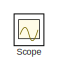
[diagram: root canvas - part 1/2, top left region]
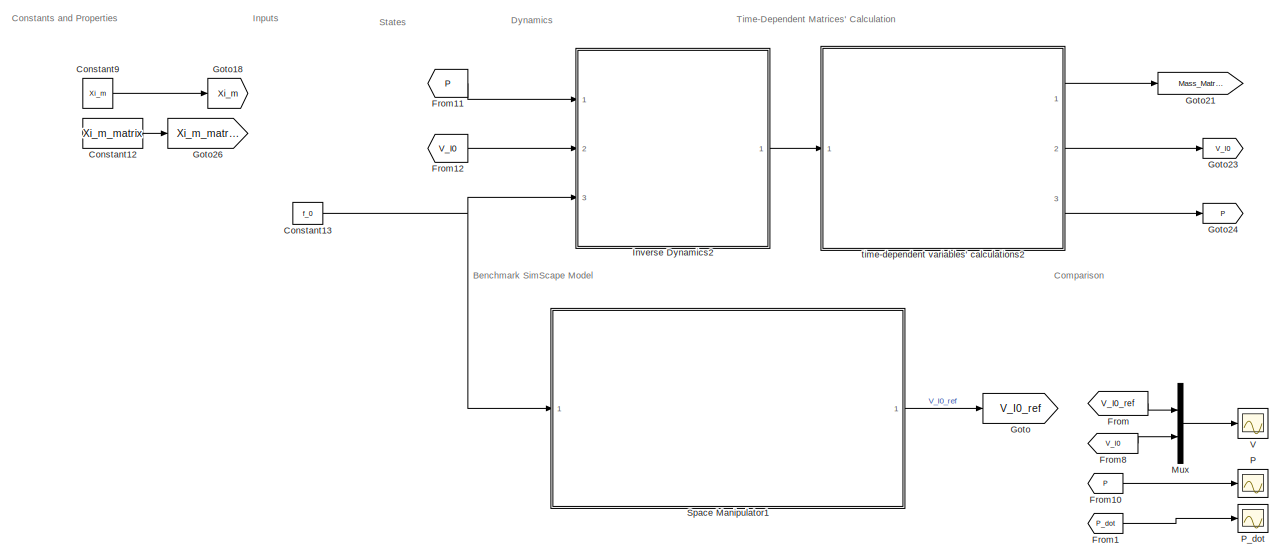
[diagram: root canvas - part 2/2, full width, bottom band]
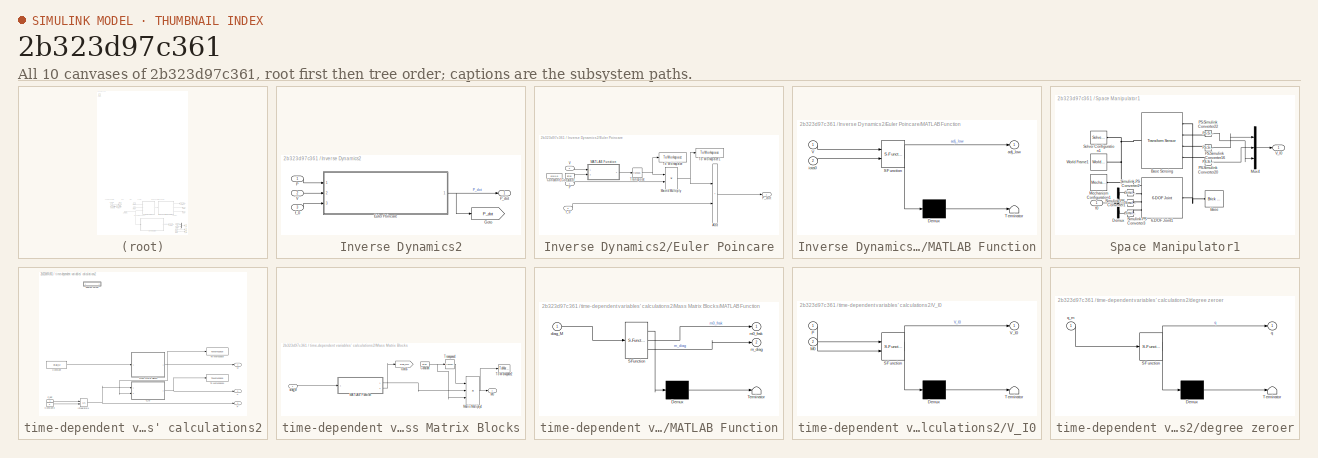
[diagram: thumbnail index - all 10 canvases of the model, root first then tree order]
MODEL slx_2b323d97c361
KIND model
CONFIG AbsTol = auto
CONFIG EnableMultiTasking = off
CONFIG FixedStep = auto
CONFIG InitFcn = % ************** Initiate forces\n% f0=[0;0;0;0;0;0];\n% f0=[0;0;0;0;0;0;0];\nf_0=[0;0;0];\nf_m=[0;0];\nf_e=[0;0;0;0;0;0];\n% ************** Initiate states\nq_m=[0;0];\nq_dot_m=[0;0];\nP=[0;0;0];\nV_I0=[1;2;0];\n% ************** Load main\n%run(Main.m)\nP=[100;   200;     0];
CONFIG MaxStep = auto
CONFIG MinStep = auto
CONFIG RelTol = 1e-3
CONFIG SampleTimeConstraint = Unconstrained
CONFIG SolverName = VariableStepAuto
CONFIG StartTime = 0.0
CONFIG StopTime = 0.01
BLOCK [Constant] Constant12
  Value = Xi_m_matrix
  VectorParams1D = off
BLOCK [Constant] Constant13
  Value = f_0
  VectorParams1D = off
BLOCK [Constant] Constant9
  Value = Xi_m
  VectorParams1D = off
BLOCK [From] From
  GotoTag = V_I0_ref
BLOCK [From] From1
  GotoTag = P_dot
  TagVisibility = global
BLOCK [From] From10
  GotoTag = P
  TagVisibility = global
BLOCK [From] From11
  GotoTag = P
  TagVisibility = global
BLOCK [From] From12
  GotoTag = V_I0
  TagVisibility = global
BLOCK [From] From8
  GotoTag = V_I0
  TagVisibility = global
BLOCK [Goto] Goto
  GotoTag = V_I0_ref
BLOCK [Goto] Goto18
  GotoTag = Xi_m
  TagVisibility = global
BLOCK [Goto] Goto21
  GotoTag = Mass_Matrix
  TagVisibility = global
BLOCK [Goto] Goto23
  GotoTag = V_I0
  TagVisibility = global
BLOCK [Goto] Goto24
  GotoTag = P
  TagVisibility = global
BLOCK [Goto] Goto26
  GotoTag = Xi_m_matrix
  TagVisibility = global
BLOCK [SubSystem] Inverse Dynamics2
  NameLocation = right
  Ports = [3, 1]
  RequestExecContextInheritance = off
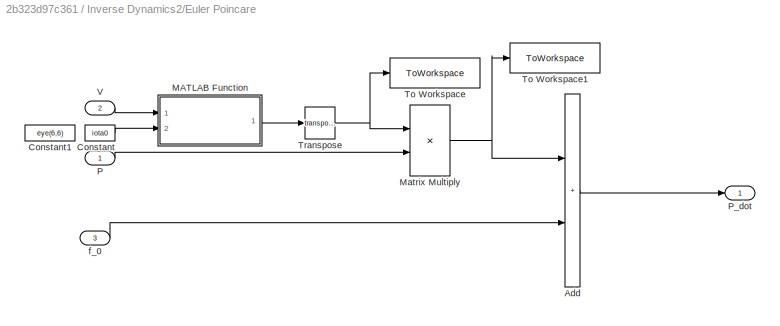
BLOCK [SubSystem] Inverse Dynamics2/Euler Poincare
  Ports = [3, 1]
  RequestExecContextInheritance = off
BLOCK [Sum] Inverse Dynamics2/Euler Poincare/Add
  IconShape = rectangular
  Ports = [2, 1]
BLOCK [Constant] Inverse Dynamics2/Euler Poincare/Constant
  Value = iota0
BLOCK [Constant] Inverse Dynamics2/Euler Poincare/Constant1
  Commented = on
  Value = eye(6,6)
BLOCK [SubSystem] Inverse Dynamics2/Euler Poincare/MATLAB Function
  ErrorFcn = Stateflow.Translate.translate
  PermitHierarchicalResolution = ExplicitOnly
  Ports = [2, 1]
  RequestExecContextInheritance = off
  SFBlockType = MATLAB Function
  TreatAsAtomicUnit = on
BLOCK [Demux] Inverse Dynamics2/Euler Poincare/MATLAB Function/ Demux 
  Outputs = 1
  Ports = [1, 1]
BLOCK [S-Function] Inverse Dynamics2/Euler Poincare/MATLAB Function/ SFunction 
  EnableBusSupport = on
  FunctionName = sf_sfun
  PortCounts = [2 2]
  Ports = [2, 2]
  SFcnIsStateOwnerBlock = off
  SFunctionDeploymentMode = off
  Tag = Stateflow S-Function 27
BLOCK [Terminator] Inverse Dynamics2/Euler Poincare/MATLAB Function/ Terminator 
BLOCK [Inport] Inverse Dynamics2/Euler Poincare/MATLAB Function/V
BLOCK [Outport] Inverse Dynamics2/Euler Poincare/MATLAB Function/adj_low
BLOCK [Inport] Inverse Dynamics2/Euler Poincare/MATLAB Function/iota0
  Port = 2
BLOCK [Product] Inverse Dynamics2/Euler Poincare/Matrix Multiply
  Multiplication = Matrix(*)
  Ports = [2, 1]
BLOCK [Inport] Inverse Dynamics2/Euler Poincare/P
BLOCK [Outport] Inverse Dynamics2/Euler Poincare/P_dot
BLOCK [ToWorkspace] Inverse Dynamics2/Euler Poincare/To Workspace
  FixptAsFi = on
  MaxDataPoints = inf
  Ports = [1]
  SampleTime = -1
  SaveFormat = Timeseries
  VariableName = simout
BLOCK [ToWorkspace] Inverse Dynamics2/Euler Poincare/To Workspace1
  FixptAsFi = on
  MaxDataPoints = inf
  Ports = [1]
  SampleTime = -1
  SaveFormat = Timeseries
  VariableName = simout1
BLOCK [Math] Inverse Dynamics2/Euler Poincare/Transpose
  Operator = transpose
  Ports = [1, 1]
BLOCK [Inport] Inverse Dynamics2/Euler Poincare/V
  Port = 2
BLOCK [Inport] Inverse Dynamics2/Euler Poincare/f_0
  Port = 3
BLOCK [Goto] Inverse Dynamics2/Goto
  GotoTag = P_dot
  TagVisibility = global
BLOCK [Inport] Inverse Dynamics2/P
BLOCK [Outport] Inverse Dynamics2/P_dot
BLOCK [Inport] Inverse Dynamics2/V
  Port = 2
BLOCK [Inport] Inverse Dynamics2/f_0
  Port = 3
BLOCK [Mux] Mux
  DisplayOption = bar
  Inputs = 2
  Ports = [2, 1]
BLOCK [Scope] P
  Floating = off
  NumInputPorts = 1
  Ports = [1]
  ScopeSpecificationString = Simulink.scopes.TimeScopeBlockCfg('CurrentConfiguration', extmgr.ConfigurationSet(extmgr.Configuration('Core','General UI',true),extmgr.Configuration('Core','Source UI',true),extmgr.Configuration('Sources','WiredSimulink',true,'DataLoggingVariableName','ScopeData1'),extmgr.Configuration('Visuals','Time Domain',true,'SerializedDisplays',{struct('MinYLimReal','-26.00000','MaxYLimReal','234.00000','Y...<+1801ch>
BLOCK [Scope] P_dot
  Floating = off
  NumInputPorts = 1
  Ports = [1]
  ScopeSpecificationString = Simulink.scopes.TimeScopeBlockCfg('CurrentConfiguration', extmgr.ConfigurationSet(extmgr.Configuration('Core','General UI',true),extmgr.Configuration('Core','Source UI',true),extmgr.Configuration('Sources','WiredSimulink',true,'DataLoggingVariableName','ScopeData3'),extmgr.Configuration('Visuals','Time Domain',true,'SerializedDisplays',{struct('MinYLimReal','-16.875','MaxYLimReal','1.875','YLabelR...<+1652ch>
BLOCK [Scope] Scope
  Floating = off
  IOType = viewer
  NumInputPorts = 1
  Ports = []
  ScopeSpecificationString = Simulink.scopes.TimeScopeBlockCfg('CurrentConfiguration', extmgr.ConfigurationSet(extmgr.Configuration('Core','General UI',true),extmgr.Configuration('Core','Source UI',true),extmgr.Configuration('Sources','WiredSimulink',true),extmgr.Configuration('Visuals','Time Domain',true,'SerializedDisplays',{struct('MinYLimReal','-10','MaxYLimReal','10','YLabelReal','','MinYLimMag','0','MaxYLimMag','10','Le...<+777ch>
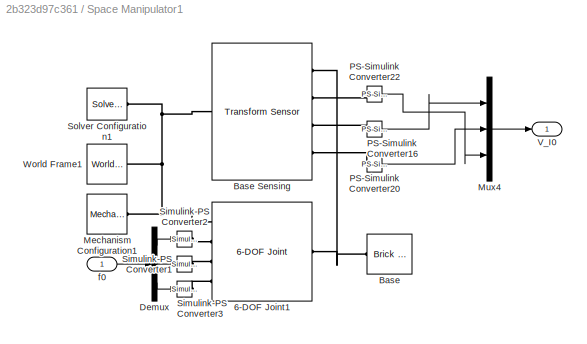
BLOCK [SubSystem] Space Manipulator1
  Ports = [1, 1]
  RequestExecContextInheritance = off
BLOCK [Reference] Space Manipulator1/6-DOF Joint1  REF=sm_lib/Joints/6-DOF Joint
  Ports = [0, 0, 0, 0, 0, 4, 1]
  SourceBlock = sm_lib/Joints/6-DOF Joint
  SourceProductBaseCode = MS
  SourceType = 6-DOF Joint
BLOCK [Reference] Space Manipulator1/Base  REF=sm_lib/Body Elements/Brick Solid
  Ports = [0, 0, 0, 0, 0, 0, 1]
  SourceBlock = sm_lib/Body Elements/Brick Solid
  SourceProductBaseCode = MS
  SourceType = Brick Solid
BLOCK [Reference] Space Manipulator1/Base Sensing  REF=sm_lib/Frames and
Transforms/Transform
Sensor
  Ports = [0, 0, 0, 0, 0, 1, 4]
  SourceBlock = sm_lib/Frames and\nTransforms/Transform\nSensor
  SourceProductBaseCode = MS
  SourceType = Transform\nSensor
BLOCK [Demux] Space Manipulator1/Demux
  Outputs = 3
  Ports = [1, 3]
BLOCK [Reference] Space Manipulator1/Mechanism Configuration1  REF=sm_lib/Utilities/Mechanism
Configuration
  Ports = [0, 0, 0, 0, 0, 0, 1]
  SourceBlock = sm_lib/Utilities/Mechanism\nConfiguration
  SourceProductBaseCode = MS
  SourceType = Mechanism\nConfiguration
BLOCK [Mux] Space Manipulator1/Mux4
  DisplayOption = bar
  Inputs = 3
  Ports = [3, 1]
BLOCK [Reference] Space Manipulator1/PS-Simulink Converter16  REF=nesl_utility/PS-Simulink
Converter
  Ports = [0, 1, 0, 0, 0, 1]
  SourceBlock = nesl_utility/PS-Simulink\nConverter
  SourceProductBaseCode = PW,SS
  SourceType = PS-Simulink\nConverter
BLOCK [Reference] Space Manipulator1/PS-Simulink Converter20  REF=nesl_utility/PS-Simulink
Converter
  Ports = [0, 1, 0, 0, 0, 1]
  SourceBlock = nesl_utility/PS-Simulink\nConverter
  SourceProductBaseCode = PW,SS
  SourceType = PS-Simulink\nConverter
BLOCK [Reference] Space Manipulator1/PS-Simulink Converter22  REF=nesl_utility/PS-Simulink
Converter
  Ports = [0, 1, 0, 0, 0, 1]
  SourceBlock = nesl_utility/PS-Simulink\nConverter
  SourceProductBaseCode = PW,SS
  SourceType = PS-Simulink\nConverter
BLOCK [Reference] Space Manipulator1/Simulink-PS Converter1  REF=nesl_utility/Simulink-PS
Converter
  Ports = [1, 0, 0, 0, 0, 0, 1]
  SourceBlock = nesl_utility/Simulink-PS\nConverter
  SourceProductBaseCode = PW,SS
  SourceType = Simulink-PS\nConverter
BLOCK [Reference] Space Manipulator1/Simulink-PS Converter2  REF=nesl_utility/Simulink-PS
Converter
  Ports = [1, 0, 0, 0, 0, 0, 1]
  SourceBlock = nesl_utility/Simulink-PS\nConverter
  SourceProductBaseCode = PW,SS
  SourceType = Simulink-PS\nConverter
BLOCK [Reference] Space Manipulator1/Simulink-PS Converter3  REF=nesl_utility/Simulink-PS
Converter
  Ports = [1, 0, 0, 0, 0, 0, 1]
  SourceBlock = nesl_utility/Simulink-PS\nConverter
  SourceProductBaseCode = PW,SS
  SourceType = Simulink-PS\nConverter
BLOCK [Reference] Space Manipulator1/Solver Configuration1  REF=nesl_utility/Solver
Configuration
  Ports = [0, 0, 0, 0, 0, 0, 1]
  SourceBlock = nesl_utility/Solver\nConfiguration
  SourceProductBaseCode = PW,SS
  SourceType = Solver\nConfiguration
BLOCK [Outport] Space Manipulator1/V_I0
BLOCK [Reference] Space Manipulator1/World Frame1  REF=sm_lib/Frames and
Transforms/World Frame
  Ports = [0, 0, 0, 0, 0, 0, 1]
  SourceBlock = sm_lib/Frames and\nTransforms/World Frame
  SourceProductBaseCode = MS
  SourceType = World Frame
BLOCK [Inport] Space Manipulator1/f0
BLOCK [Scope] V
  Floating = off
  NumInputPorts = 1
  Ports = [1]
  ScopeSpecificationString = Simulink.scopes.TimeScopeBlockCfg('CurrentConfiguration', extmgr.ConfigurationSet(extmgr.Configuration('Core','General UI',true),extmgr.Configuration('Core','Source UI',true),extmgr.Configuration('Sources','WiredSimulink',true,'DataLoggingVariableName','ScopeData2'),extmgr.Configuration('Visuals','Time Domain',true,'SerializedDisplays',{struct('MinYLimReal','-0.25','MaxYLimReal','2.25','YLabelReal...<+1680ch>
BLOCK [SubSystem] time-dependent variables' calculations2
  Ports = [1, 3]
  RequestExecContextInheritance = off
BLOCK [Constant] time-dependent variables' calculations2/Constant
  Value = diag_M
  VectorParams1D = off
BLOCK [Constant] time-dependent variables' calculations2/Constant3
  Value = P
  VectorParams1D = off
BLOCK [Integrator] time-dependent variables' calculations2/Integrator4
  InitialConditionSource = external
  Ports = [2, 1]
BLOCK [Outport] time-dependent variables' calculations2/M
BLOCK [SubSystem] time-dependent variables' calculations2/Mass Matrix Blocks
  Ports = [1, 1]
  RequestExecContextInheritance = off
BLOCK [Constant] time-dependent variables' calculations2/Mass Matrix Blocks/Constant
  Value = iota0
BLOCK [Goto] time-dependent variables' calculations2/Mass Matrix Blocks/Goto5
  GotoTag = diag_Mm
  TagVisibility = global
BLOCK [Outport] time-dependent variables' calculations2/Mass Matrix Blocks/M0
BLOCK [SubSystem] time-dependent variables' calculations2/Mass Matrix Blocks/MATLAB Function
  ErrorFcn = Stateflow.Translate.translate
  PermitHierarchicalResolution = ExplicitOnly
  Ports = [1, 2]
  RequestExecContextInheritance = off
  SFBlockType = MATLAB Function
  TreatAsAtomicUnit = on
BLOCK [Demux] time-dependent variables' calculations2/Mass Matrix Blocks/MATLAB Function/ Demux 
  Outputs = 1
  Ports = [1, 1]
BLOCK [S-Function] time-dependent variables' calculations2/Mass Matrix Blocks/MATLAB Function/ SFunction 
  EnableBusSupport = on
  FunctionName = sf_sfun
  PortCounts = [1 3]
  Ports = [1, 3]
  SFcnIsStateOwnerBlock = off
  SFunctionDeploymentMode = off
  Tag = Stateflow S-Function 63
BLOCK [Terminator] time-dependent variables' calculations2/Mass Matrix Blocks/MATLAB Function/ Terminator 
BLOCK [Inport] time-dependent variables' calculations2/Mass Matrix Blocks/MATLAB Function/diag_M
BLOCK [Outport] time-dependent variables' calculations2/Mass Matrix Blocks/MATLAB Function/m0_frak
BLOCK [Outport] time-dependent variables' calculations2/Mass Matrix Blocks/MATLAB Function/m_diag
  Port = 2
BLOCK [Product] time-dependent variables' calculations2/Mass Matrix Blocks/Matrix Multiply4
  Inputs = 3
  Multiplication = Matrix(*)
  Ports = [3, 1]
BLOCK [ToWorkspace] time-dependent variables' calculations2/Mass Matrix Blocks/To Workspace2
  FixptAsFi = on
  MaxDataPoints = inf
  Ports = [1]
  SampleTime = -1
  SaveFormat = Timeseries
  VariableName = m0calc
BLOCK [Math] time-dependent variables' calculations2/Mass Matrix Blocks/Transpose4
  Operator = transpose
  Ports = [1, 1]
BLOCK [Inport] time-dependent variables' calculations2/Mass Matrix Blocks/diag_M
BLOCK [Outport] time-dependent variables' calculations2/P
  Port = 3
BLOCK [Inport] time-dependent variables' calculations2/P_dot
BLOCK [ToWorkspace] time-dependent variables' calculations2/To Workspace
  FixptAsFi = on
  MaxDataPoints = inf
  Ports = [1]
  SampleTime = -1
  SaveFormat = Timeseries
  VariableName = M
BLOCK [ToWorkspace] time-dependent variables' calculations2/To Workspace1
  FixptAsFi = on
  MaxDataPoints = inf
  Ports = [1]
  SampleTime = -1
  SaveFormat = Timeseries
  VariableName = V
BLOCK [Outport] time-dependent variables' calculations2/V
  Port = 2
BLOCK [SubSystem] time-dependent variables' calculations2/V_I0
  ErrorFcn = Stateflow.Translate.translate
  PermitHierarchicalResolution = ExplicitOnly
  Ports = [2, 1]
  RequestExecContextInheritance = off
  SFBlockType = MATLAB Function
  TreatAsAtomicUnit = on
BLOCK [Demux] time-dependent variables' calculations2/V_I0/ Demux 
  Outputs = 1
  Ports = [1, 1]
BLOCK [S-Function] time-dependent variables' calculations2/V_I0/ SFunction 
  EnableBusSupport = on
  FunctionName = sf_sfun
  PortCounts = [2 2]
  Ports = [2, 2]
  SFcnIsStateOwnerBlock = off
  SFunctionDeploymentMode = off
  Tag = Stateflow S-Function 64
BLOCK [Terminator] time-dependent variables' calculations2/V_I0/ Terminator 
BLOCK [Inport] time-dependent variables' calculations2/V_I0/M0
  Port = 2
BLOCK [Inport] time-dependent variables' calculations2/V_I0/P
BLOCK [Outport] time-dependent variables' calculations2/V_I0/V_I0
BLOCK [SubSystem] time-dependent variables' calculations2/degree zeroer
  Commented = on
  ErrorFcn = Stateflow.Translate.translate
  PermitHierarchicalResolution = ExplicitOnly
  Ports = [1, 1]
  RequestExecContextInheritance = off
  SFBlockType = MATLAB Function
  TreatAsAtomicUnit = on
BLOCK [Demux] time-dependent variables' calculations2/degree zeroer/ Demux 
  Outputs = 1
  Ports = [1, 1]
BLOCK [S-Function] time-dependent variables' calculations2/degree zeroer/ SFunction 
  EnableBusSupport = on
  FunctionName = sf_sfun
  PortCounts = [1 2]
  Ports = [1, 2]
  SFcnIsStateOwnerBlock = off
  SFunctionDeploymentMode = off
  Tag = Stateflow S-Function 65
BLOCK [Terminator] time-dependent variables' calculations2/degree zeroer/ Terminator 
BLOCK [Outport] time-dependent variables' calculations2/degree zeroer/q
BLOCK [Inport] time-dependent variables' calculations2/degree zeroer/q_m
ANNOTATION (root): Benchmark SimScape Model
ANNOTATION (root): Comparison
ANNOTATION (root): Constants and Properties
ANNOTATION (root): Dynamics
ANNOTATION (root): Inputs
ANNOTATION (root): States
ANNOTATION (root): Time-Dependent Matrices' Calculation
LINE Constant12:1 -> Goto26:1
NET Constant13:1 -> Inverse Dynamics2:3, Space Manipulator1:1
LINE Constant9:1 -> Goto18:1
LINE From10:1 -> P:1
LINE From11:1 -> Inverse Dynamics2:1
LINE From12:1 -> Inverse Dynamics2:2
LINE From1:1 -> P_dot:1
LINE From8:1 -> Mux:2
LINE From:1 -> Mux:1
LINE Inverse Dynamics2/Euler Poincare/Add:1 -> Inverse Dynamics2/Euler Poincare/P_dot:1
LINE Inverse Dynamics2/Euler Poincare/Constant:1 -> Inverse Dynamics2/Euler Poincare/MATLAB Function:2
LINE Inverse Dynamics2/Euler Poincare/MATLAB Function:1 -> Inverse Dynamics2/Euler Poincare/Transpose:1
NET Inverse Dynamics2/Euler Poincare/Matrix Multiply:1 -> Inverse Dynamics2/Euler Poincare/Add:1, Inverse Dynamics2/Euler Poincare/To Workspace1:1
LINE Inverse Dynamics2/Euler Poincare/P:1 -> Inverse Dynamics2/Euler Poincare/Matrix Multiply:2
NET Inverse Dynamics2/Euler Poincare/Transpose:1 -> Inverse Dynamics2/Euler Poincare/Matrix Multiply:1, Inverse Dynamics2/Euler Poincare/To Workspace:1
LINE Inverse Dynamics2/Euler Poincare/V:1 -> Inverse Dynamics2/Euler Poincare/MATLAB Function:1
LINE Inverse Dynamics2/Euler Poincare/f_0:1 -> Inverse Dynamics2/Euler Poincare/Add:2
NET Inverse Dynamics2/Euler Poincare:1 -> Inverse Dynamics2/Goto:1, Inverse Dynamics2/P_dot:1
LINE Inverse Dynamics2/P:1 -> Inverse Dynamics2/Euler Poincare:1
LINE Inverse Dynamics2/V:1 -> Inverse Dynamics2/Euler Poincare:2
LINE Inverse Dynamics2/f_0:1 -> Inverse Dynamics2/Euler Poincare:3
LINE Inverse Dynamics2:1 -> time-dependent variables' calculations2:1
LINE Mux:1 -> V:1
LINE Space Manipulator1/Demux:1 -> Space Manipulator1/Simulink-PS Converter2:1
LINE Space Manipulator1/Demux:2 -> Space Manipulator1/Simulink-PS Converter1:1
LINE Space Manipulator1/Demux:3 -> Space Manipulator1/Simulink-PS Converter3:1
LINE Space Manipulator1/Mux4:1 -> Space Manipulator1/V_I0:1
LINE Space Manipulator1/PS-Simulink Converter16:1 -> Space Manipulator1/Mux4:1
LINE Space Manipulator1/PS-Simulink Converter20:1 -> Space Manipulator1/Mux4:2
LINE Space Manipulator1/PS-Simulink Converter22:1 -> Space Manipulator1/Mux4:3
LINE Space Manipulator1/f0:1 -> Space Manipulator1/Demux:1
LINE Space Manipulator1:1 -> Goto:1
LINE time-dependent variables' calculations2/Constant3:1 -> time-dependent variables' calculations2/Integrator4:2
LINE time-dependent variables' calculations2/Constant:1 -> time-dependent variables' calculations2/Mass Matrix Blocks:1
NET time-dependent variables' calculations2/Integrator4:1 -> time-dependent variables' calculations2/P:1, time-dependent variables' calculations2/V_I0:1
NET time-dependent variables' calculations2/Mass Matrix Blocks/Constant:1 -> time-dependent variables' calculations2/Mass Matrix Blocks/Matrix Multiply4:3, time-dependent variables' calculations2/Mass Matrix Blocks/Transpose4:1
LINE time-dependent variables' calculations2/Mass Matrix Blocks/MATLAB Function:1 -> time-dependent variables' calculations2/Mass Matrix Blocks/Matrix Multiply4:2
LINE time-dependent variables' calculations2/Mass Matrix Blocks/MATLAB Function:2 -> time-dependent variables' calculations2/Mass Matrix Blocks/Goto5:1
NET time-dependent variables' calculations2/Mass Matrix Blocks/Matrix Multiply4:1 -> time-dependent variables' calculations2/Mass Matrix Blocks/M0:1, time-dependent variables' calculations2/Mass Matrix Blocks/To Workspace2:1
LINE time-dependent variables' calculations2/Mass Matrix Blocks/Transpose4:1 -> time-dependent variables' calculations2/Mass Matrix Blocks/Matrix Multiply4:1
LINE time-dependent variables' calculations2/Mass Matrix Blocks/diag_M:1 -> time-dependent variables' calculations2/Mass Matrix Blocks/MATLAB Function:1
NET time-dependent variables' calculations2/Mass Matrix Blocks:1 -> time-dependent variables' calculations2/M:1, time-dependent variables' calculations2/To Workspace:1, time-dependent variables' calculations2/V_I0:2
LINE time-dependent variables' calculations2/P_dot:1 -> time-dependent variables' calculations2/Integrator4:1
NET time-dependent variables' calculations2/V_I0:1 -> time-dependent variables' calculations2/To Workspace1:1, time-dependent variables' calculations2/V:1
LINE time-dependent variables' calculations2:1 -> Goto21:1
LINE time-dependent variables' calculations2:2 -> Goto23:1
LINE time-dependent variables' calculations2:3 -> Goto24:1
PNET net1: Space Manipulator1/6-DOF Joint1:LConn1 -- Space Manipulator1/Base Sensing:LConn1 -- Space Manipulator1/Mechanism Configuration1:RConn1 -- Space Manipulator1/Solver Configuration1:RConn1 -- Space Manipulator1/World Frame1:RConn1
PLINE Space Manipulator1/6-DOF Joint1:LConn2 -- Space Manipulator1/Simulink-PS Converter2:RConn1
PLINE Space Manipulator1/6-DOF Joint1:LConn3 -- Space Manipulator1/Simulink-PS Converter1:RConn1
PLINE Space Manipulator1/6-DOF Joint1:LConn4 -- Space Manipulator1/Simulink-PS Converter3:RConn1
PNET net2: Space Manipulator1/6-DOF Joint1:RConn1 -- Space Manipulator1/Base Sensing:RConn1 -- Space Manipulator1/Base:RConn1
PLINE Space Manipulator1/Base Sensing:RConn2 -- Space Manipulator1/PS-Simulink Converter22:LConn1
PLINE Space Manipulator1/Base Sensing:RConn3 -- Space Manipulator1/PS-Simulink Converter16:LConn1
PLINE Space Manipulator1/Base Sensing:RConn4 -- Space Manipulator1/PS-Simulink Converter20:LConn1
note: NET lines group one-source signal fan-out (src -> all destinations, sorted); 1:1 wires keep LINE; PNET lines group multi-terminal physical nets as a canonical sorted terminal list (undirected conserving connections); 2-terminal nets keep the pairwise PLINE form
CHART Inverse Dynamics2/Euler Poincare/MATLAB Function states=1 transitions=1
  STATE_LABEL 'eML_blk_kernel()'
  STATE_LABEL 'SCRIPT:\nfunction adj_low = adj_low(V, iota0)\n% calculates the adjoint corresponding to the Lie bracket of vector V and ()\nadj_low = adjoint_low(V,iota0);\n'
CHART time-dependent variables' calculations2/Mass Matrix Blocks/MATLAB Function states=1 transitions=1
  STATE_LABEL 'eML_blk_kernel()'
  STATE_LABEL 'SCRIPT:\nfunction [m0_frak,m_diag]=m_frak_decomp(diag_M)\n% Compute the Mass Matrix of the multibody system.\n%   Output:\n%   M0      Spacecraft mass matrix \n%   M0m\n%   Mm      Manipulator mass matrix\n\n%n=length(q_m);\n\nm0_frak=diag_M(1:6,1:6);\nm_diag=diag_M(7:end,7:end);'
CHART time-dependent variables' calculations2/V_I0 states=1 transitions=1
  STATE_LABEL 'eML_blk_kernel()'
  STATE_LABEL 'SCRIPT:\nfunction V_I0=V_I0(P,M0)\n% Find the spaccecraft velocity V_I0\n% M0_inv=inv(M0);\n% temp=P-transpose(A_connection)*q_dot_m;\nV_I0=M0\\P;\n'
CHART time-dependent variables' calculations2/degree zeroer states=1 transitions=1
  STATE_LABEL 'eML_blk_kernel()'
  STATE_LABEL 'SCRIPT:\nfunction q=degreezeroer(q_m)\nq=q_m;\nn=length(q(:,1));\nfor i=1:n\n    if q(i)>0\n        while q(i)>2*pi\n            q(i)=q(i)-2*pi;\n        end\n    elseif q(i)<0\n        while q(i)<-2*pi\n            q(i)=q(i)+2*pi;\n        end\n    end\nend\nend'
CHART  states=0 transitions=0
CHART  states=0 transitions=0
CHART  states=0 transitions=0
CHART  states=0 transitions=0
